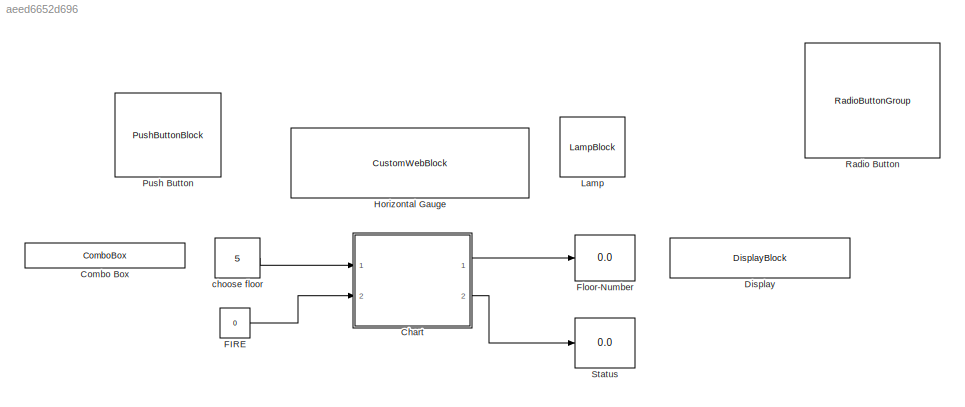
MODEL slx_aeed6652d696
KIND model
CONFIG AbsTol = auto
CONFIG EnableMultiTasking = off
CONFIG FixedStep = auto
CONFIG MaxStep = auto
CONFIG MinStep = auto
CONFIG RelTol = 1e-3
CONFIG SampleTimeConstraint = Unconstrained
CONFIG Solver = VariableStepAuto
CONFIG SolverName = VariableStepAuto
CONFIG StartTime = 0.0
CONFIG StopTime = 10.0
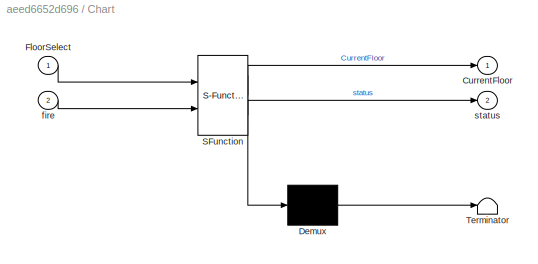
BLOCK [SubSystem] Chart
  ErrorFcn = Stateflow.Translate.translate
  PermitHierarchicalResolution = ExplicitOnly
  Ports = [2, 2]
  RequestExecContextInheritance = off
  SFBlockType = Chart
  TreatAsAtomicUnit = on
BLOCK [Demux] Chart/ Demux 
  Outputs = 1
  Ports = [1, 1]
BLOCK [S-Function] Chart/ SFunction 
  EnableBusSupport = on
  FunctionName = sf_sfun
  PortCounts = [2 3]
  Ports = [2, 3]
  SFcnIsStateOwnerBlock = off
  SFunctionDeploymentMode = off
  Tag = Stateflow S-Function 3
BLOCK [Terminator] Chart/ Terminator 
BLOCK [Outport] Chart/CurrentFloor
BLOCK [Inport] Chart/FloorSelect
BLOCK [Inport] Chart/fire
  Port = 2
BLOCK [Outport] Chart/status
  Port = 2
BLOCK [ComboBox] Combo Box
  LabelPosition = Hide
  SelectedLabel = 5
BLOCK [DisplayBlock] Display
  Format = short
  LabelPosition = Hide
  Transparency = 1
BLOCK [Constant] FIRE
  Value = 0
BLOCK [Display] Floor-Number
  Decimation = 1
  Ports = [1]
BLOCK [CustomWebBlock] Horizontal Gauge
  Configuration = {"components":[{"name":"LinearScaleComponent","settings":{"bounds":{"max":5,"min":0,"tickInterval":1},"labelColor":[250,245,199],"labelFont":{"font":"Arial","fontSize":12},"labelTransparency":1,"needleImage":{"size":[21,75],"src":"data:image\/svg+xml;base64,PHN2ZyB4bWxucz0iaHR0cDovL3d3dy53My5vcmcvMjAwMC9zdmciIHhtbG5zOnhsaW5rPSJodHRwOi8vd3d3LnczLm9yZy8xOTk5L3hsaW5rIiB2aWV3Qm94PSIwIDAgMjEgNzUiPjxkZW...<+5492ch>
  ShowInitialText = on
BLOCK [LampBlock] Lamp
BLOCK [PushButtonBlock] Push Button
  ButtonText = Help FIRE
BLOCK [RadioButtonGroup] Radio Button
  ButtonGroupName = Group
BLOCK [Display] Status
  Decimation = 1
  Ports = [1]
BLOCK [Constant] choose floor
  Value = 5
LINE Chart:1 -> Floor-Number:1
LINE Chart:2 -> Status:1
LINE FIRE:1 -> Chart:2
LINE choose floor:1 -> Chart:1
CHART Chart states=12 transitions=29
  STATE_LABEL 'LiftOperation\nentry:\nstatus=0;'
  STATE_LABEL 'LiftFunctionOn'
  STATE_LABEL 'GroundFloor\nentry:\nstatus=1;\nduring:\nCurrentFloor=0;\nFloorCheck(CurrentFloor);\nexit:\nstatus=0;\n'
  STATE_LABEL 'FirstFloor\nentry:\nstatus=1;\nduring:\nCurrentFloor=1;\nFloorCheck(CurrentFloor);\nexit:\nstatus=0;\n'
  STATE_LABEL 'SecondFloor\nentry:\nstatus=1;\nduring:\nCurrentFloor=2;\nFloorCheck(CurrentFloor);\nexit:\nstatus=0;\nafter(1,sec);\n'
  STATE_LABEL 'ThirdFloor\nentry:\nstatus=1;\nduring:\nCurrentFloor=3;\nFloorCheck(CurrentFloor);\nexit:\nstatus=0;\nafter(1,sec);'
  STATE_LABEL 'FourthFloor\nentry:\nstatus=1\nduring:\nCurrentFloor=4;\nFloorCheck(CurrentFloor);\nexit:\nstatus=0;\n'
  STATE_LABEL 'FifthFloor\nentry:\nstatus=1;\nduring:\nCurrentFloor=5;\nFloorCheck(CurrentFloor);\nexit:\nstatus=0;\n'
  STATE_LABEL 'up'
  STATE_LABEL 'down'
  STATE_LABEL 'up'
  STATE_LABEL 'down'
  STATE_LABEL 'up'
  STATE_LABEL 'down'
  STATE_LABEL 'up'
  STATE_LABEL 'down'
  STATE_LABEL 'up'
  STATE_LABEL 'down'
  STATE_LABEL 'H'
  STATE_LABEL 'LiftFunctionOff\nen:\nstatus=0;'
  STATE_LABEL '[signal==0]'
  STATE_LABEL '[signal==1]'
  STATE_LABEL 'LiftFunctionOn'
  STATE_LABEL 'GroundFloor\nentry:\nstatus=1;\nduring:\nCurrentFloor=0;\nFloorCheck(CurrentFloor);\nexit:\nstatus=0;\n'
  STATE_LABEL 'FirstFloor\nentry:\nstatus=1;\nduring:\nCurrentFloor=1;\nFloorCheck(CurrentFloor);\nexit:\nstatus=0;\n'
  STATE_LABEL 'SecondFloor\nentry:\nstatus=1;\nduring:\nCurrentFloor=2;\nFloorCheck(CurrentFloor);\nexit:\nstatus=0;\nafter(1,sec);\n'
  STATE_LABEL 'ThirdFloor\nentry:\nstatus=1;\nduring:\nCurrentFloor=3;\nFloorCheck(CurrentFloor);\nexit:\nstatus=0;\nafter(1,sec);'
  STATE_LABEL 'FourthFloor\nentry:\nstatus=1\nduring:\nCurrentFloor=4;\nFloorCheck(CurrentFloor);\nexit:\nstatus=0;\n'
  STATE_LABEL 'FifthFloor\nentry:\nstatus=1;\nduring:\nCurrentFloor=5;\nFloorCheck(CurrentFloor);\nexit:\nstatus=0;\n'
  STATE_LABEL 'up'
  STATE_LABEL 'down'
  STATE_LABEL 'up'
  STATE_LABEL 'down'
  STATE_LABEL 'up'
  STATE_LABEL 'down'
  STATE_LABEL 'up'
  STATE_LABEL 'down'
  STATE_LABEL 'up'
  STATE_LABEL 'down'
  STATE_LABEL 'H'
CHART  states=0 transitions=0
